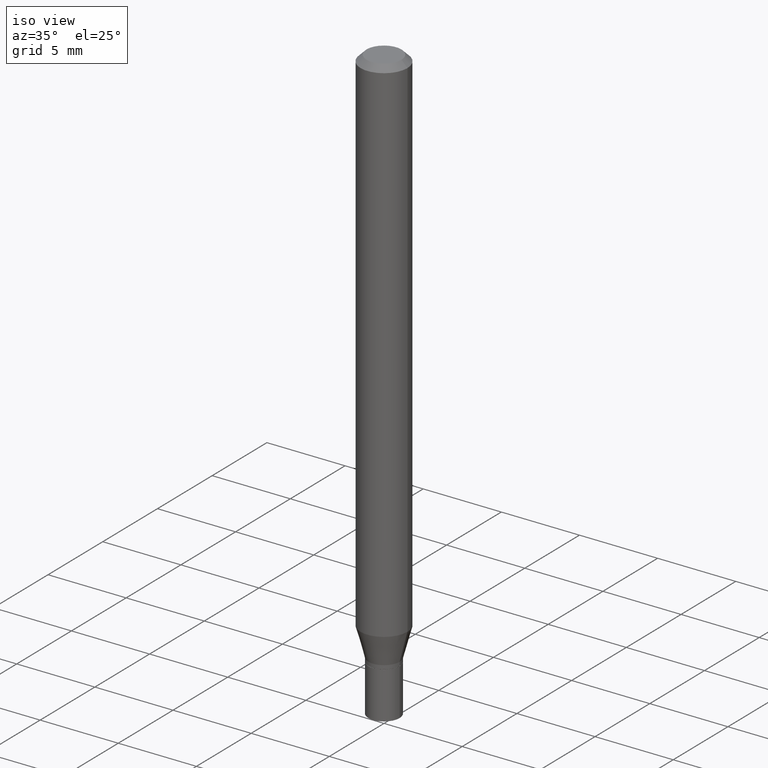
[diagram: clean part render]
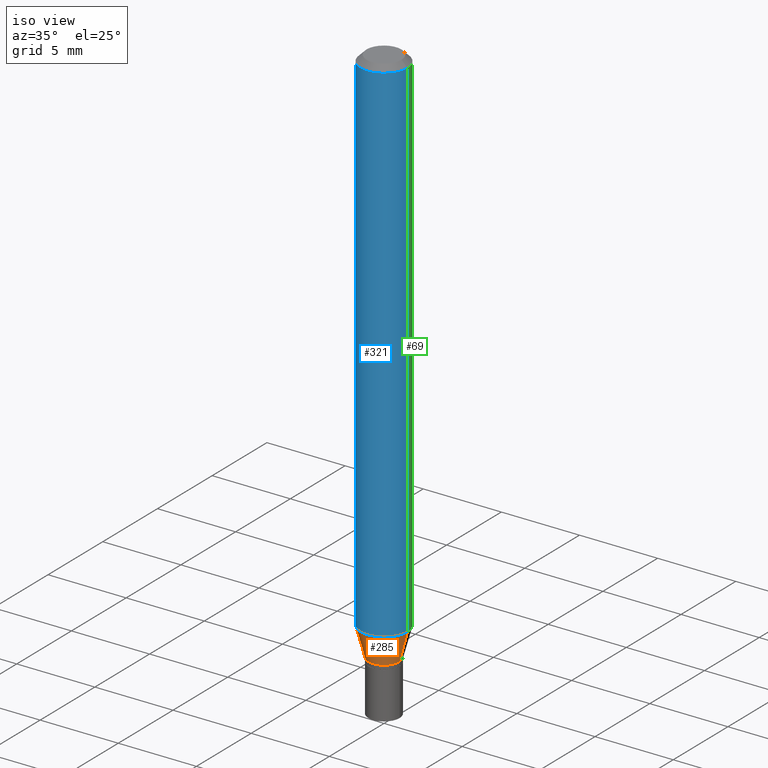
[diagram: same view with three faces highlighted in distinct colors, each labeled with its STEP entity id]
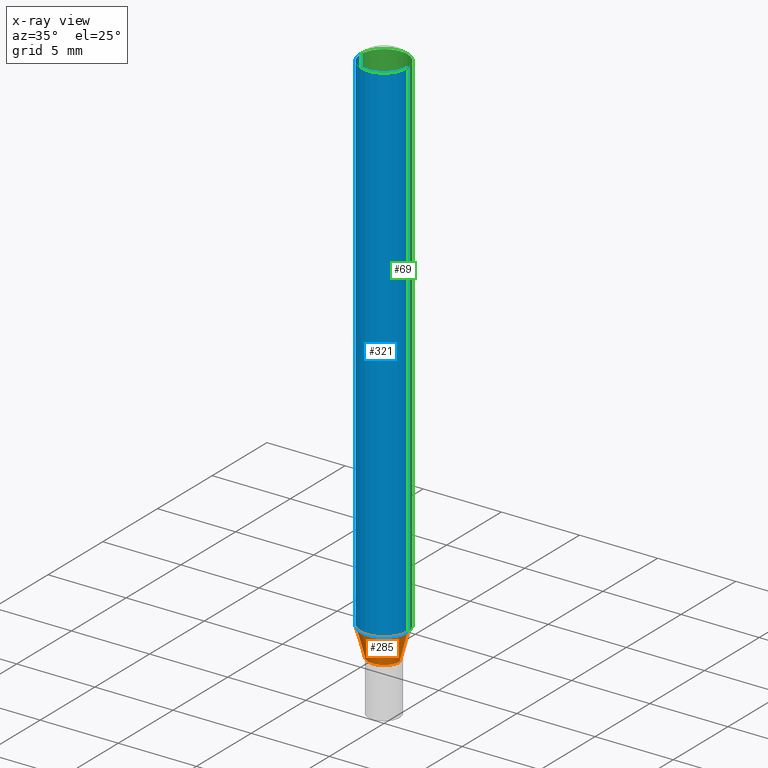
[diagram: x-ray of the same camera — body ghosted, the three highlighted faces saturated]
A machine part, iso view with three faces highlighted in distinct colors.
The next image is the same camera in x-ray (body ghosted, the three faces saturated) — at least one of them is partly hidden behind the body in this view.
Their STEP definitions:

[orange] entity #285 — the highlighted conical surface has half-angle 15 deg.
#4 = CARTESIAN_POINT ( 'NONE',  ( 3.354938655205389469E-29, -4.789963248758912396E-15, -1.371900000000000119 ) ) ;
#35 = CARTESIAN_POINT ( 'NONE',  ( 0.05904999999999999832, -4.945608595596534021E-15, -1.298378599090893371 ) ) ;
#40 = CIRCLE ( 'NONE', #426, 0.03934999999999992670 ) ;
#51 = EDGE_LOOP ( 'NONE', ( #361, #295, #367, #404 ) ) ;
#74 = VERTEX_POINT ( 'NONE', #292 ) ;
#85 = VERTEX_POINT ( 'NONE', #35 ) ;
#102 = CARTESIAN_POINT ( 'NONE',  ( 0.03934999999999992670, -5.064742830125866524E-15, -1.371900000000000119 ) ) ;
#110 = DIRECTION ( 'NONE',  ( -2.445468806185136597E-29, 3.491481338843145583E-15, 1.000000000000000000 ) ) ;
#111 = VECTOR ( 'NONE', #465, 39.37007874015748143 ) ;
#133 = CARTESIAN_POINT ( 'NONE',  ( 3.175144362695136916E-29, -4.533264649479159890E-15, -1.298378599090893371 ) ) ;
#140 = DIRECTION ( 'NONE',  ( -0.2588190451025216832, 5.211531920934551831E-15, 0.9659258262890679791 ) ) ;
#148 = DIRECTION ( 'NONE',  ( -2.445468806185136597E-29, 3.491481338843145583E-15, 1.000000000000000000 ) ) ;
#153 = EDGE_CURVE ( 'NONE', #74, #251, #297, .T. ) ;
#162 = EDGE_CURVE ( 'NONE', #251, #85, #452, .T. ) ;
#173 = AXIS2_PLACEMENT_3D ( 'NONE', #133, #304, #228 ) ;
#177 = FACE_OUTER_BOUND ( 'NONE', #51, .T. ) ;
#197 = CARTESIAN_POINT ( 'NONE',  ( 0.03934999999999992670, -5.064742830125866524E-15, -1.371900000000000119 ) ) ;
#228 = DIRECTION ( 'NONE',  ( 1.000000000000000000, -6.982962677686273021E-15, 0.000000000000000000 ) ) ;
#238 = DIRECTION ( 'NONE',  ( 1.000000000000000000, -6.982962677686258033E-15, 0.000000000000000000 ) ) ;
#242 = CARTESIAN_POINT ( 'NONE',  ( 3.354938655205389469E-29, -4.789963248758912396E-15, -1.371900000000000119 ) ) ;
#248 = DIRECTION ( 'NONE',  ( 1.000000000000000000, -6.982962677686258033E-15, 0.000000000000000000 ) ) ;
#251 = VERTEX_POINT ( 'NONE', #424 ) ;
#259 = VERTEX_POINT ( 'NONE', #197 ) ;
#285 = ADVANCED_FACE ( 'NONE', ( #177 ), #438, .T. ) ;
#292 = CARTESIAN_POINT ( 'NONE',  ( -0.03934999999999992670, -4.312026923125067488E-15, -1.371900000000000119 ) ) ;
#295 = ORIENTED_EDGE ( 'NONE', *, *, #345, .T. ) ;
#297 = LINE ( 'NONE', #457, #411 ) ;
#303 = EDGE_CURVE ( 'NONE', #259, #85, #348, .T. ) ;
#304 = DIRECTION ( 'NONE',  ( -2.445468806185136597E-29, 3.491481338843145583E-15, 1.000000000000000000 ) ) ;
#345 = EDGE_CURVE ( 'NONE', #74, #259, #40, .T. ) ;
#348 = LINE ( 'NONE', #102, #111 ) ;
#356 = AXIS2_PLACEMENT_3D ( 'NONE', #242, #110, #238 ) ;
#361 = ORIENTED_EDGE ( 'NONE', *, *, #153, .F. ) ;
#367 = ORIENTED_EDGE ( 'NONE', *, *, #303, .T. ) ;
#404 = ORIENTED_EDGE ( 'NONE', *, *, #162, .F. ) ;
#411 = VECTOR ( 'NONE', #140, 39.37007874015748143 ) ;
#424 = CARTESIAN_POINT ( 'NONE',  ( -0.05904999999999999832, -4.113689164012821186E-15, -1.298378599090893371 ) ) ;
#426 = AXIS2_PLACEMENT_3D ( 'NONE', #4, #148, #248 ) ;
#438 = CONICAL_SURFACE ( 'NONE', #356, 0.03934999999999992670, 0.2617993877991502960 ) ;
#452 = CIRCLE ( 'NONE', #173, 0.05904999999999999832 ) ;
#457 = CARTESIAN_POINT ( 'NONE',  ( -0.03934999999999992670, -4.510364682237313790E-15, -1.371900000000000119 ) ) ;
#465 = DIRECTION ( 'NONE',  ( 0.2588190451025216832, 1.565188264969619798E-15, 0.9659258262890679791 ) ) ;

[blue] entity #321 — the highlighted cylindrical surface (edge-blend (fillet) strip) has radius 1.4999 mm, axis along (-0, 0, 1).
#33 = CYLINDRICAL_SURFACE ( 'NONE', #289, 0.05904999999999999832 ) ;
#35 = CARTESIAN_POINT ( 'NONE',  ( 0.05904999999999999832, -4.945608595596534021E-15, -1.298378599090893371 ) ) ;
#41 = ORIENTED_EDGE ( 'NONE', *, *, #310, .T. ) ;
#70 = DIRECTION ( 'NONE',  ( -2.445468806185136597E-29, 3.491481338843145583E-15, 1.000000000000000000 ) ) ;
#71 = ORIENTED_EDGE ( 'NONE', *, *, #398, .F. ) ;
#73 = FACE_OUTER_BOUND ( 'NONE', #293, .T. ) ;
#85 = VERTEX_POINT ( 'NONE', #35 ) ;
#133 = CARTESIAN_POINT ( 'NONE',  ( 3.175144362695136916E-29, -4.533264649479159890E-15, -1.298378599090893371 ) ) ;
#162 = EDGE_CURVE ( 'NONE', #251, #85, #452, .T. ) ;
#163 = AXIS2_PLACEMENT_3D ( 'NONE', #390, #206, #350 ) ;
#171 = CARTESIAN_POINT ( 'NONE',  ( 0.05904999999999999832, -4.647161662000212105E-16, -0.01499999999999999944 ) ) ;
#173 = AXIS2_PLACEMENT_3D ( 'NONE', #133, #304, #228 ) ;
#175 = LINE ( 'NONE', #245, #276 ) ;
#202 = DIRECTION ( 'NONE',  ( 1.000000000000000000, -6.982962677686266711E-15, 4.876176775795936353E-29 ) ) ;
#206 = DIRECTION ( 'NONE',  ( -2.445468806185136597E-29, 3.491481338843145583E-15, 1.000000000000000000 ) ) ;
#207 = CARTESIAN_POINT ( 'NONE',  ( -0.05904999999999999832, -1.873242949314564189E-15, -0.01499999999999999944 ) ) ;
#211 = ORIENTED_EDGE ( 'NONE', *, *, #162, .T. ) ;
#228 = DIRECTION ( 'NONE',  ( 1.000000000000000000, -6.982962677686273021E-15, 0.000000000000000000 ) ) ;
#245 = CARTESIAN_POINT ( 'NONE',  ( 0.05904999999999999832, -4.123439461173740327E-16, 2.879382386107500220E-30 ) ) ;
#251 = VERTEX_POINT ( 'NONE', #424 ) ;
#260 = LINE ( 'NONE', #317, #313 ) ;
#276 = VECTOR ( 'NONE', #386, 39.37007874015748143 ) ;
#278 = ORIENTED_EDGE ( 'NONE', *, *, #339, .F. ) ;
#286 = VERTEX_POINT ( 'NONE', #171 ) ;
#289 = AXIS2_PLACEMENT_3D ( 'NONE', #346, #70, #202 ) ;
#293 = EDGE_LOOP ( 'NONE', ( #71, #211, #41, #278 ) ) ;
#304 = DIRECTION ( 'NONE',  ( -2.445468806185136597E-29, 3.491481338843145583E-15, 1.000000000000000000 ) ) ;
#310 = EDGE_CURVE ( 'NONE', #85, #286, #175, .T. ) ;
#313 = VECTOR ( 'NONE', #362, 39.37007874015748143 ) ;
#317 = CARTESIAN_POINT ( 'NONE',  ( -0.05904999999999999832, 4.195754854663391478E-16, -2.904631170795521892E-30 ) ) ;
#321 = ADVANCED_FACE ( 'NONE', ( #73 ), #33, .T. ) ;
#330 = VERTEX_POINT ( 'NONE', #207 ) ;
#339 = EDGE_CURVE ( 'NONE', #330, #286, #446, .T. ) ;
#346 = CARTESIAN_POINT ( 'NONE',  ( 0.000000000000000000, 0.000000000000000000, 0.000000000000000000 ) ) ;
#350 = DIRECTION ( 'NONE',  ( 1.000000000000000000, -6.982962677686266711E-15, 0.000000000000000000 ) ) ;
#362 = DIRECTION ( 'NONE',  ( -2.445468806185136877E-29, 3.491481338843145188E-15, 1.000000000000000000 ) ) ;
#386 = DIRECTION ( 'NONE',  ( -2.445468806185136877E-29, 3.491481338843145188E-15, 1.000000000000000000 ) ) ;
#390 = CARTESIAN_POINT ( 'NONE',  ( 3.668203209277705088E-31, -5.237222008264718399E-17, -0.01499999999999999944 ) ) ;
#398 = EDGE_CURVE ( 'NONE', #251, #330, #260, .T. ) ;
#424 = CARTESIAN_POINT ( 'NONE',  ( -0.05904999999999999832, -4.113689164012821186E-15, -1.298378599090893371 ) ) ;
#446 = CIRCLE ( 'NONE', #163, 0.05904999999999999832 ) ;
#452 = CIRCLE ( 'NONE', #173, 0.05904999999999999832 ) ;

[green] entity #69 — the highlighted cylindrical surface (edge-blend (fillet) strip) has radius 1.4999 mm, axis along (-0, 0, 1).
#5 = CYLINDRICAL_SURFACE ( 'NONE', #306, 0.05904999999999999832 ) ;
#31 = CARTESIAN_POINT ( 'NONE',  ( 3.668203209277705088E-31, -5.237222008264718399E-17, -0.01499999999999999944 ) ) ;
#35 = CARTESIAN_POINT ( 'NONE',  ( 0.05904999999999999832, -4.945608595596534021E-15, -1.298378599090893371 ) ) ;
#69 = ADVANCED_FACE ( 'NONE', ( #262 ), #5, .T. ) ;
#85 = VERTEX_POINT ( 'NONE', #35 ) ;
#101 = EDGE_CURVE ( 'NONE', #85, #251, #271, .T. ) ;
#128 = CARTESIAN_POINT ( 'NONE',  ( 0.000000000000000000, 0.000000000000000000, 0.000000000000000000 ) ) ;
#139 = ORIENTED_EDGE ( 'NONE', *, *, #441, .F. ) ;
#149 = DIRECTION ( 'NONE',  ( -2.445468806185136597E-29, 3.491481338843145583E-15, 1.000000000000000000 ) ) ;
#171 = CARTESIAN_POINT ( 'NONE',  ( 0.05904999999999999832, -4.647161662000212105E-16, -0.01499999999999999944 ) ) ;
#175 = LINE ( 'NONE', #245, #276 ) ;
#179 = AXIS2_PLACEMENT_3D ( 'NONE', #31, #203, #280 ) ;
#203 = DIRECTION ( 'NONE',  ( -2.445468806185136597E-29, 3.491481338843145583E-15, 1.000000000000000000 ) ) ;
#207 = CARTESIAN_POINT ( 'NONE',  ( -0.05904999999999999832, -1.873242949314564189E-15, -0.01499999999999999944 ) ) ;
#245 = CARTESIAN_POINT ( 'NONE',  ( 0.05904999999999999832, -4.123439461173740327E-16, 2.879382386107500220E-30 ) ) ;
#246 = DIRECTION ( 'NONE',  ( 1.000000000000000000, -6.982962677686266711E-15, 4.876176775795936353E-29 ) ) ;
#251 = VERTEX_POINT ( 'NONE', #424 ) ;
#260 = LINE ( 'NONE', #317, #313 ) ;
#262 = FACE_OUTER_BOUND ( 'NONE', #281, .T. ) ;
#271 = CIRCLE ( 'NONE', #375, 0.05904999999999999832 ) ;
#276 = VECTOR ( 'NONE', #386, 39.37007874015748143 ) ;
#280 = DIRECTION ( 'NONE',  ( 1.000000000000000000, -6.982962677686266711E-15, 0.000000000000000000 ) ) ;
#281 = EDGE_LOOP ( 'NONE', ( #300, #397, #139, #302 ) ) ;
#286 = VERTEX_POINT ( 'NONE', #171 ) ;
#290 = CIRCLE ( 'NONE', #179, 0.05904999999999999832 ) ;
#300 = ORIENTED_EDGE ( 'NONE', *, *, #101, .T. ) ;
#302 = ORIENTED_EDGE ( 'NONE', *, *, #310, .F. ) ;
#306 = AXIS2_PLACEMENT_3D ( 'NONE', #128, #371, #246 ) ;
#310 = EDGE_CURVE ( 'NONE', #85, #286, #175, .T. ) ;
#313 = VECTOR ( 'NONE', #362, 39.37007874015748143 ) ;
#317 = CARTESIAN_POINT ( 'NONE',  ( -0.05904999999999999832, 4.195754854663391478E-16, -2.904631170795521892E-30 ) ) ;
#330 = VERTEX_POINT ( 'NONE', #207 ) ;
#362 = DIRECTION ( 'NONE',  ( -2.445468806185136877E-29, 3.491481338843145188E-15, 1.000000000000000000 ) ) ;
#371 = DIRECTION ( 'NONE',  ( -2.445468806185136597E-29, 3.491481338843145583E-15, 1.000000000000000000 ) ) ;
#375 = AXIS2_PLACEMENT_3D ( 'NONE', #391, #149, #450 ) ;
#386 = DIRECTION ( 'NONE',  ( -2.445468806185136877E-29, 3.491481338843145188E-15, 1.000000000000000000 ) ) ;
#391 = CARTESIAN_POINT ( 'NONE',  ( 3.175144362695136916E-29, -4.533264649479159890E-15, -1.298378599090893371 ) ) ;
#397 = ORIENTED_EDGE ( 'NONE', *, *, #398, .T. ) ;
#398 = EDGE_CURVE ( 'NONE', #251, #330, #260, .T. ) ;
#424 = CARTESIAN_POINT ( 'NONE',  ( -0.05904999999999999832, -4.113689164012821186E-15, -1.298378599090893371 ) ) ;
#441 = EDGE_CURVE ( 'NONE', #286, #330, #290, .T. ) ;
#450 = DIRECTION ( 'NONE',  ( 1.000000000000000000, -6.982962677686273021E-15, 0.000000000000000000 ) ) ;